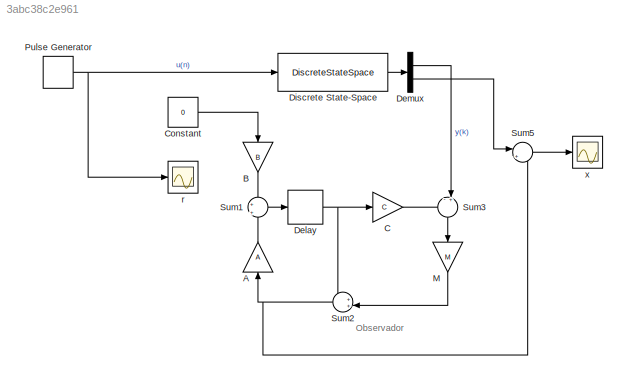
MODEL slx_3abc38c2e961
KIND model
CONFIG AbsTol = auto
CONFIG FixedStep = auto
CONFIG MaxStep = auto
CONFIG MinStep = auto
CONFIG RelTol = 1e-3
CONFIG SampleTimeConstraint = Unconstrained
CONFIG Solver = ode45
CONFIG SolverMode = Auto
CONFIG SolverName = ode45
CONFIG StartTime = 0.0
CONFIG StopTime = 20
BLOCK [Gain] A
  Gain = A
  Multiplication = Matrix(K*u) (u vector)
  OutDataTypeStr = Inherit: Inherit via internal rule
  ParamDataTypeStr = Inherit: Inherit via internal rule
  SaturateOnIntegerOverflow = off
BLOCK [Gain] B
  Gain = B
  Multiplication = Matrix(K*u) (u vector)
  OutDataTypeStr = Inherit: Inherit via internal rule
  ParamDataTypeStr = Inherit: Inherit via internal rule
  SaturateOnIntegerOverflow = off
BLOCK [Gain] C
  Gain = C
  Multiplication = Matrix(K*u) (u vector)
  OutDataTypeStr = Inherit: Inherit via internal rule
  ParamDataTypeStr = Inherit: Inherit via internal rule
  SaturateOnIntegerOverflow = off
BLOCK [Constant] Constant
  Value = 0
BLOCK [Delay] Delay
  DelayLength = 1
  InitialCondition = 0
  InputPortMap = u0
  Ports = [1, 1]
  SampleTime = 0.02
BLOCK [Demux] Demux
  DisplayOption = bar
  Outputs = 2
  Ports = [1, 2]
BLOCK [DiscreteStateSpace] Discrete State-Space
  A = A
  B = B
  C = H
  D = D
  SampleTime = 0.02
BLOCK [Gain] M
  Gain = M
  Multiplication = Matrix(K*u) (u vector)
  OutDataTypeStr = Inherit: Inherit via internal rule
  ParamDataTypeStr = Inherit: Inherit via internal rule
  SaturateOnIntegerOverflow = off
BLOCK [DiscretePulseGenerator] Pulse Generator
  Period = 20
  PhaseDelay = 1
  Ports = [0, 1]
  PulseType = Time based
BLOCK [Sum] Sum1
  IconShape = round
  InputSameDT = off
  Inputs = +|+
  OutDataTypeStr = Inherit: Inherit via internal rule
  Ports = [2, 1]
  SaturateOnIntegerOverflow = off
BLOCK [Sum] Sum2
  IconShape = round
  InputSameDT = off
  Inputs = ++|
  OutDataTypeStr = Inherit: Inherit via internal rule
  Ports = [2, 1]
  SaturateOnIntegerOverflow = off
BLOCK [Sum] Sum3
  IconShape = round
  InputSameDT = off
  Inputs = -+|
  OutDataTypeStr = Inherit: Inherit via internal rule
  Ports = [2, 1]
  SaturateOnIntegerOverflow = off
BLOCK [Sum] Sum5
  IconShape = round
  InputSameDT = off
  Inputs = |+-
  OutDataTypeStr = Inherit: Inherit via internal rule
  Ports = [2, 1]
  SaturateOnIntegerOverflow = off
BLOCK [Scope] r
  Floating = off
  NumInputPorts = 1
  Ports = [1]
  SampleInput = on
  SaveName = r_o
  SaveToWorkspace = on
  ZoomMode = yonly
BLOCK [Scope] x
  Floating = off
  NumInputPorts = 1
  Ports = [1]
  SampleInput = on
  SaveName = x_o
  SaveToWorkspace = on
ANNOTATION (root): Observador
LINE A:1 -> Sum1:2
LINE B:1 -> Sum1:1
LINE C:1 -> Sum3:1
LINE Constant:1 -> B:1
NET Delay:1 -> C:1, Sum2:1
LINE Demux:1 -> Sum3:2
LINE Demux:2 -> Sum5:1
LINE Discrete State-Space:1 -> Demux:1
LINE M:1 -> Sum2:2
NET Pulse Generator:1 -> Discrete State-Space:1, r:1
LINE Sum1:1 -> Delay:1
NET Sum2:1 -> A:1, Sum5:2
LINE Sum3:1 -> M:1
LINE Sum5:1 -> x:1
note: NET lines group one-source signal fan-out (src -> all destinations, sorted); 1:1 wires keep LINE
